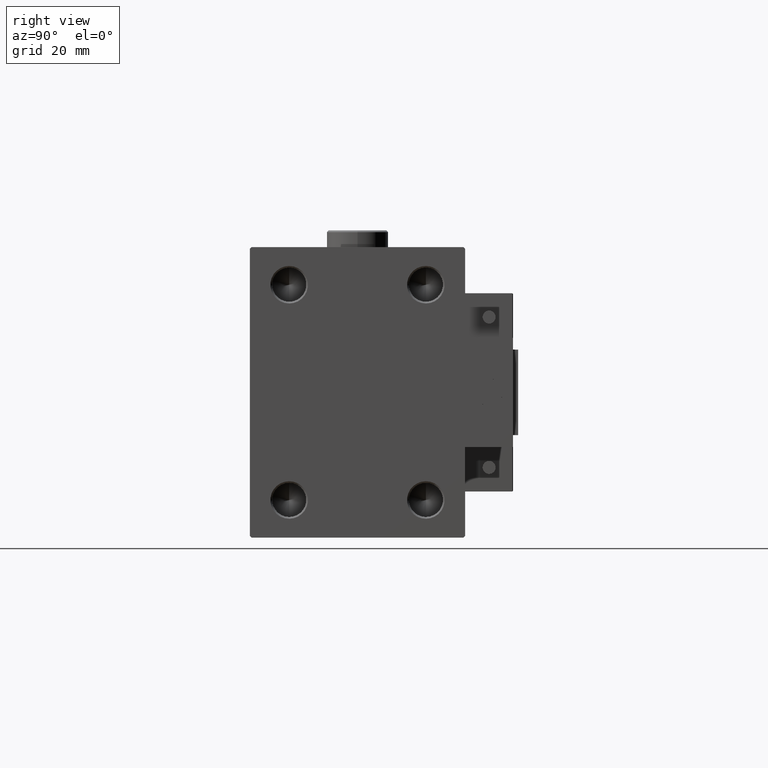
[diagram: clean part render]
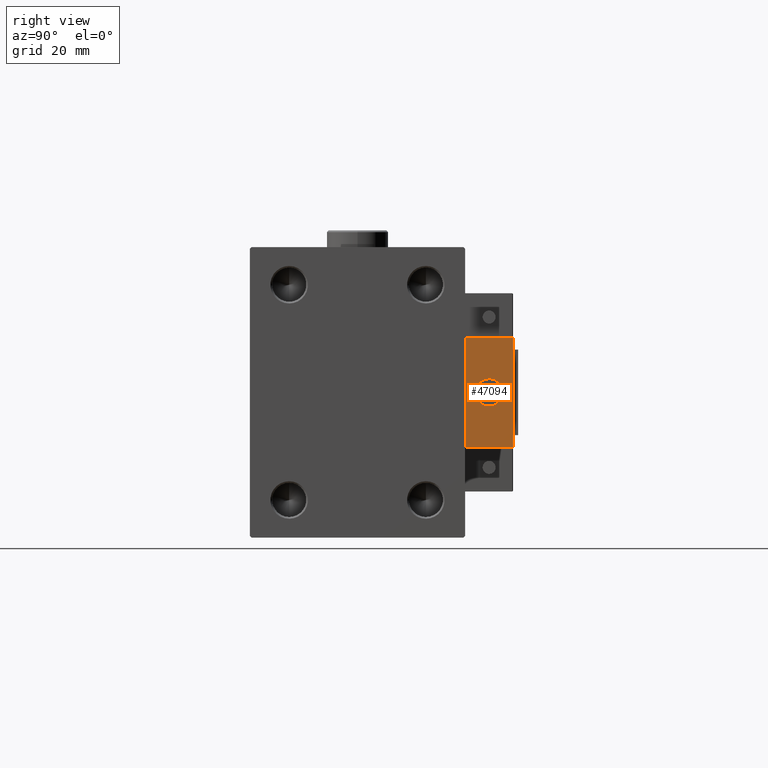
[diagram: same view with one face highlighted and labeled with its STEP entity id]
A machine part, right view. The second image highlights one B-rep face of the part: STEP entity #47094.
In plain terms, the highlighted planar face has unit normal (-1, 0, 0).
Its self-contained STEP definition (entity closure, byte-faithful):
#745 = CARTESIAN_POINT ( 'NONE',  ( 10.00000000000000000, 7.000000000000000000, 15.99999999999999289 ) ) ;
#850 = CARTESIAN_POINT ( 'NONE',  ( 10.00000000000000000, 0.000000000000000000, 4.000000000000000000 ) ) ;
#1011 = AXIS2_PLACEMENT_3D ( 'NONE', #43444, #29709, #37926 ) ;
#1261 = LINE ( 'NONE', #745, #30392 ) ;
#1808 = EDGE_CURVE ( 'NONE', #49786, #16062, #17246, .T. ) ;
#4384 = VERTEX_POINT ( 'NONE', #8035 ) ;
#6239 = AXIS2_PLACEMENT_3D ( 'NONE', #40642, #12996, #24961 ) ;
#7340 = DIRECTION ( 'NONE',  ( -1.000000000000000000, 0.000000000000000000, 0.000000000000000000 ) ) ;
#8035 = CARTESIAN_POINT ( 'NONE',  ( 10.00000000000000000, 7.000000000000000000, -16.00000000000000711 ) ) ;
#8443 = VECTOR ( 'NONE', #50790, 1000.000000000000000 ) ;
#9817 = LINE ( 'NONE', #26030, #45253 ) ;
#11814 = VECTOR ( 'NONE', #46745, 1000.000000000000000 ) ;
#12085 = EDGE_LOOP ( 'NONE', ( #17053, #26254, #16746, #41508 ) ) ;
#12996 = DIRECTION ( 'NONE',  ( -1.000000000000000000, 0.000000000000000000, 0.000000000000000000 ) ) ;
#13498 = FACE_OUTER_BOUND ( 'NONE', #12085, .T. ) ;
#13626 = CARTESIAN_POINT ( 'NONE',  ( 10.00000000000000000, -7.000000000000000000, -16.00000000000000711 ) ) ;
#15333 = CARTESIAN_POINT ( 'NONE',  ( 10.00000000000000000, -7.000000000000000000, 15.99999999999999289 ) ) ;
#16062 = VERTEX_POINT ( 'NONE', #850 ) ;
#16746 = ORIENTED_EDGE ( 'NONE', *, *, #41298, .F. ) ;
#17053 = ORIENTED_EDGE ( 'NONE', *, *, #18880, .T. ) ;
#17246 = CIRCLE ( 'NONE', #6239, 4.000000000000000000 ) ;
#17879 = EDGE_CURVE ( 'NONE', #16062, #49786, #43224, .T. ) ;
#18400 = EDGE_CURVE ( 'NONE', #4384, #47443, #25528, .T. ) ;
#18880 = EDGE_CURVE ( 'NONE', #34287, #47443, #42734, .T. ) ;
#20925 = DIRECTION ( 'NONE',  ( 0.000000000000000000, 0.000000000000000000, -1.000000000000000000 ) ) ;
#21470 = PLANE ( 'NONE',  #1011 ) ;
#23283 = DIRECTION ( 'NONE',  ( 0.000000000000000000, 0.000000000000000000, 1.000000000000000000 ) ) ;
#24168 = CARTESIAN_POINT ( 'NONE',  ( 10.00000000000000000, 7.000000000000000000, 15.99999999999999289 ) ) ;
#24961 = DIRECTION ( 'NONE',  ( 0.000000000000000000, 0.000000000000000000, 1.000000000000000000 ) ) ;
#25528 = LINE ( 'NONE', #42273, #8443 ) ;
#25681 = EDGE_CURVE ( 'NONE', #43214, #34287, #9817, .T. ) ;
#26030 = CARTESIAN_POINT ( 'NONE',  ( 10.00000000000000000, 7.000000000000000000, 15.99999999999999289 ) ) ;
#26254 = ORIENTED_EDGE ( 'NONE', *, *, #18400, .F. ) ;
#26554 = ORIENTED_EDGE ( 'NONE', *, *, #17879, .T. ) ;
#28775 = AXIS2_PLACEMENT_3D ( 'NONE', #36005, #7340, #23283 ) ;
#29709 = DIRECTION ( 'NONE',  ( -1.000000000000000000, 0.000000000000000000, -0.000000000000000000 ) ) ;
#30392 = VECTOR ( 'NONE', #20925, 1000.000000000000000 ) ;
#34287 = VERTEX_POINT ( 'NONE', #36712 ) ;
#36005 = CARTESIAN_POINT ( 'NONE',  ( 10.00000000000000000, 0.000000000000000000, 0.000000000000000000 ) ) ;
#36712 = CARTESIAN_POINT ( 'NONE',  ( 10.00000000000000000, -7.000000000000000000, 15.99999999999999289 ) ) ;
#37926 = DIRECTION ( 'NONE',  ( -0.000000000000000000, 0.000000000000000000, 1.000000000000000000 ) ) ;
#39943 = CARTESIAN_POINT ( 'NONE',  ( 10.00000000000000000, 4.898587196589412829E-16, -4.000000000000000000 ) ) ;
#40642 = CARTESIAN_POINT ( 'NONE',  ( 10.00000000000000000, 0.000000000000000000, 0.000000000000000000 ) ) ;
#41298 = EDGE_CURVE ( 'NONE', #43214, #4384, #1261, .T. ) ;
#41508 = ORIENTED_EDGE ( 'NONE', *, *, #25681, .T. ) ;
#42243 = DIRECTION ( 'NONE',  ( 0.000000000000000000, -1.000000000000000000, 0.000000000000000000 ) ) ;
#42273 = CARTESIAN_POINT ( 'NONE',  ( 10.00000000000000000, 7.000000000000000000, -16.00000000000000711 ) ) ;
#42734 = LINE ( 'NONE', #15333, #11814 ) ;
#43214 = VERTEX_POINT ( 'NONE', #24168 ) ;
#43224 = CIRCLE ( 'NONE', #28775, 4.000000000000000000 ) ;
#43444 = CARTESIAN_POINT ( 'NONE',  ( 10.00000000000000000, 0.000000000000000000, 0.000000000000000000 ) ) ;
#45253 = VECTOR ( 'NONE', #42243, 1000.000000000000000 ) ;
#46745 = DIRECTION ( 'NONE',  ( 0.000000000000000000, 0.000000000000000000, -1.000000000000000000 ) ) ;
#47094 = ADVANCED_FACE ( 'NONE', ( #49923, #13498 ), #21470, .F. ) ;
#47443 = VERTEX_POINT ( 'NONE', #13626 ) ;
#48652 = ORIENTED_EDGE ( 'NONE', *, *, #1808, .T. ) ;
#49786 = VERTEX_POINT ( 'NONE', #39943 ) ;
#49923 = FACE_BOUND ( 'NONE', #52204, .T. ) ;
#50790 = DIRECTION ( 'NONE',  ( 0.000000000000000000, -1.000000000000000000, 0.000000000000000000 ) ) ;
#52204 = EDGE_LOOP ( 'NONE', ( #26554, #48652 ) ) ;